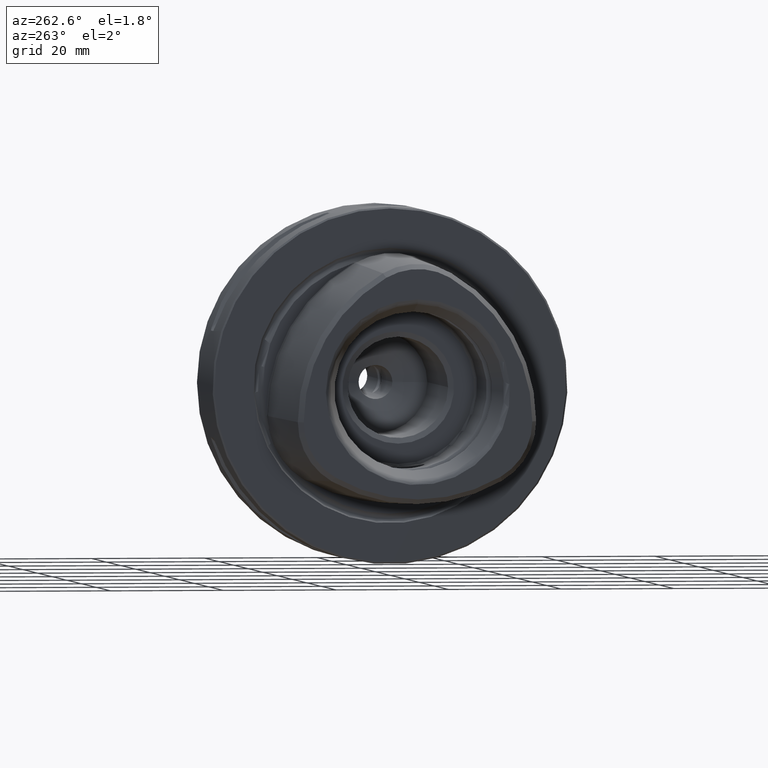
[diagram: clean part render]
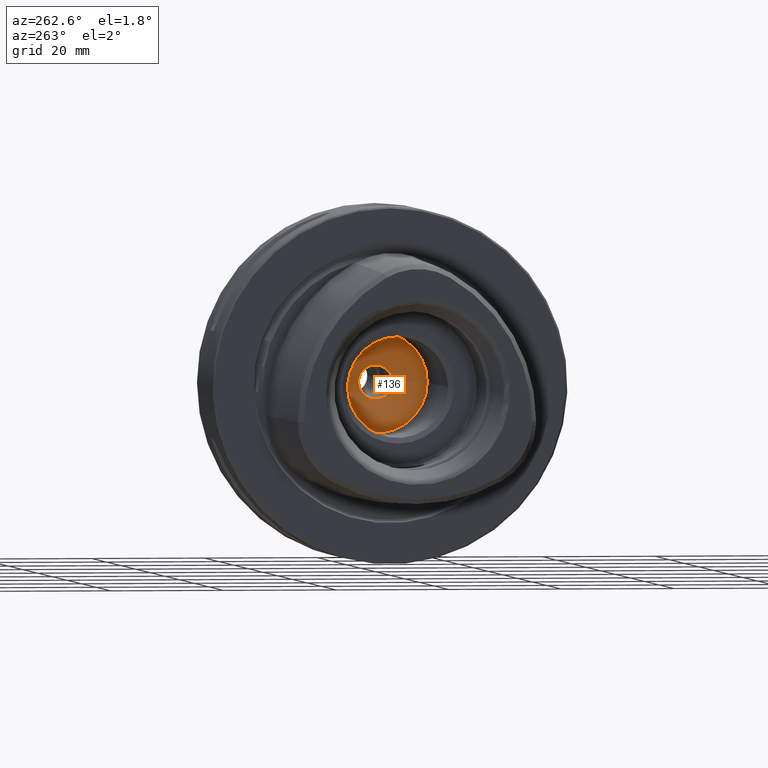
[diagram: same view with one face highlighted and labeled with its STEP entity id]
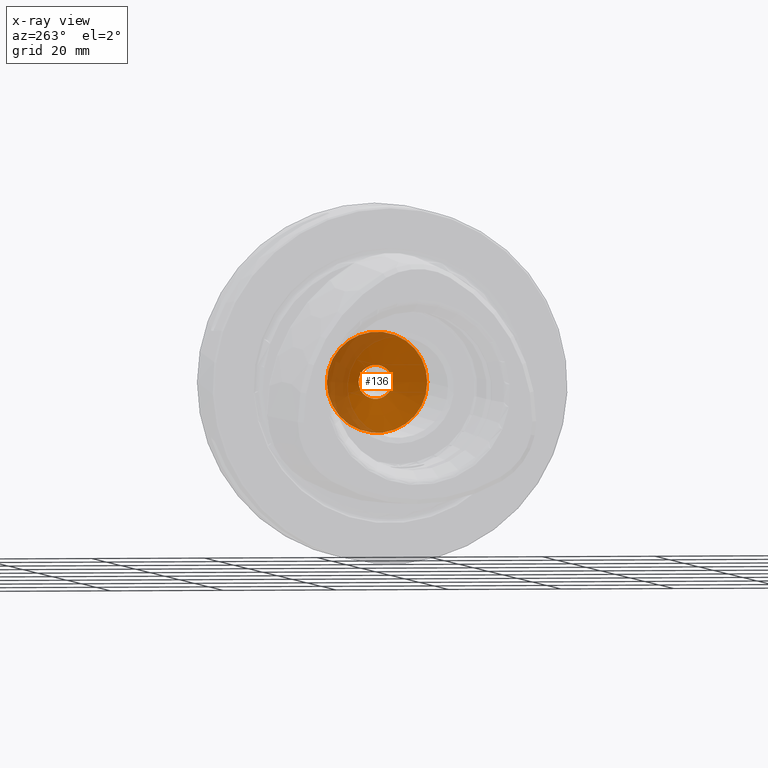
[diagram: x-ray of the same camera — body ghosted, the highlighted face saturated]
A machine part, auxiliary view. The second image highlights one B-rep face of the part: STEP entity #136.
The next image is the same camera in x-ray: the body ghosted, the highlighted face saturated — about 31% of this face is hidden behind the body in this view.
In plain terms, the highlighted conical surface has half-angle 70 deg.
Its self-contained STEP definition (entity closure, byte-faithful):
#136 = ADVANCED_FACE( '', ( #371, #372 ), #373, .F. );
#371 = FACE_OUTER_BOUND( '', #752, .T. );
#372 = FACE_BOUND( '', #753, .T. );
#373 = CONICAL_SURFACE( '', #754, 8.91750000000000, 1.22173047639603 );
#752 = EDGE_LOOP( '', ( #1139 ) );
#753 = EDGE_LOOP( '', ( #1140 ) );
#754 = AXIS2_PLACEMENT_3D( '', #1141, #1142, #1143 );
#1139 = ORIENTED_EDGE( '', *, *, #1986, .F. );
#1140 = ORIENTED_EDGE( '', *, *, #1987, .F. );
#1141 = CARTESIAN_POINT( '', ( 18.0000000000000, 2.26316361484624E-015, 0.000000000000000 ) );
#1142 = DIRECTION( '', ( -1.00000000000000, 6.12303176911189E-017, -0.000000000000000 ) );
#1143 = DIRECTION( '', ( 6.12303176911189E-017, 1.00000000000000, 0.000000000000000 ) );
#1986 = EDGE_CURVE( '', #2316, #2316, #2317, .T. );
#1987 = EDGE_CURVE( '', #2318, #2318, #2319, .T. );
#2316 = VERTEX_POINT( '', #2808 );
#2317 = CIRCLE( '', #2809, 8.91750000000000 );
#2318 = VERTEX_POINT( '', #2810 );
#2319 = CIRCLE( '', #2811, 3.00000000000000 );
#2808 = CARTESIAN_POINT( '', ( 18.0000000000000, 8.91750000000000, 0.000000000000000 ) );
#2809 = AXIS2_PLACEMENT_3D( '', #4028, #4029, #4030 );
#2810 = CARTESIAN_POINT( '', ( 20.1537938612703, -3.00000000000000, 0.000000000000000 ) );
#2811 = AXIS2_PLACEMENT_3D( '', #4031, #4032, #4033 );
#4028 = CARTESIAN_POINT( '', ( 18.0000000000000, 2.26316361484624E-015, 0.000000000000000 ) );
#4029 = DIRECTION( '', ( 1.00000000000000, -6.12303176911189E-017, 0.000000000000000 ) );
#4030 = DIRECTION( '', ( 6.12303176911189E-017, 1.00000000000000, 0.000000000000000 ) );
#4031 = CARTESIAN_POINT( '', ( 20.1537938612703, 2.13128613247948E-015, 0.000000000000000 ) );
#4032 = DIRECTION( '', ( -1.00000000000000, 6.12303176911189E-017, 0.000000000000000 ) );
#4033 = DIRECTION( '', ( -6.12303176911189E-017, -1.00000000000000, 0.000000000000000 ) );